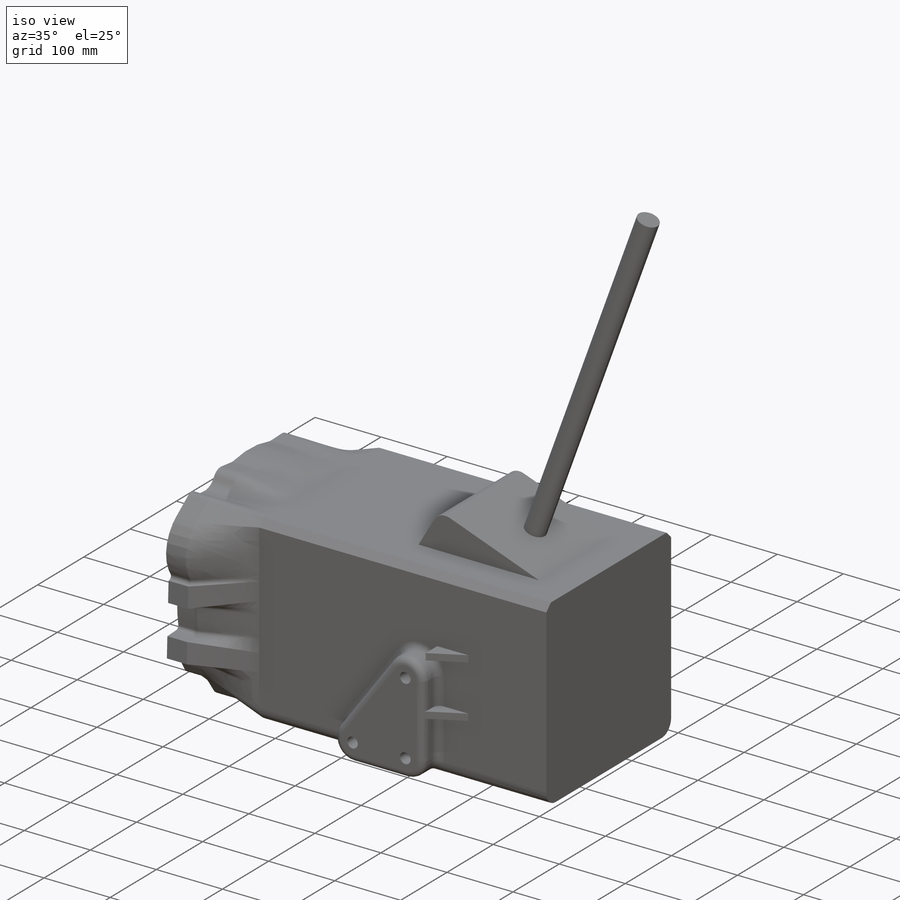
[diagram: iso view]
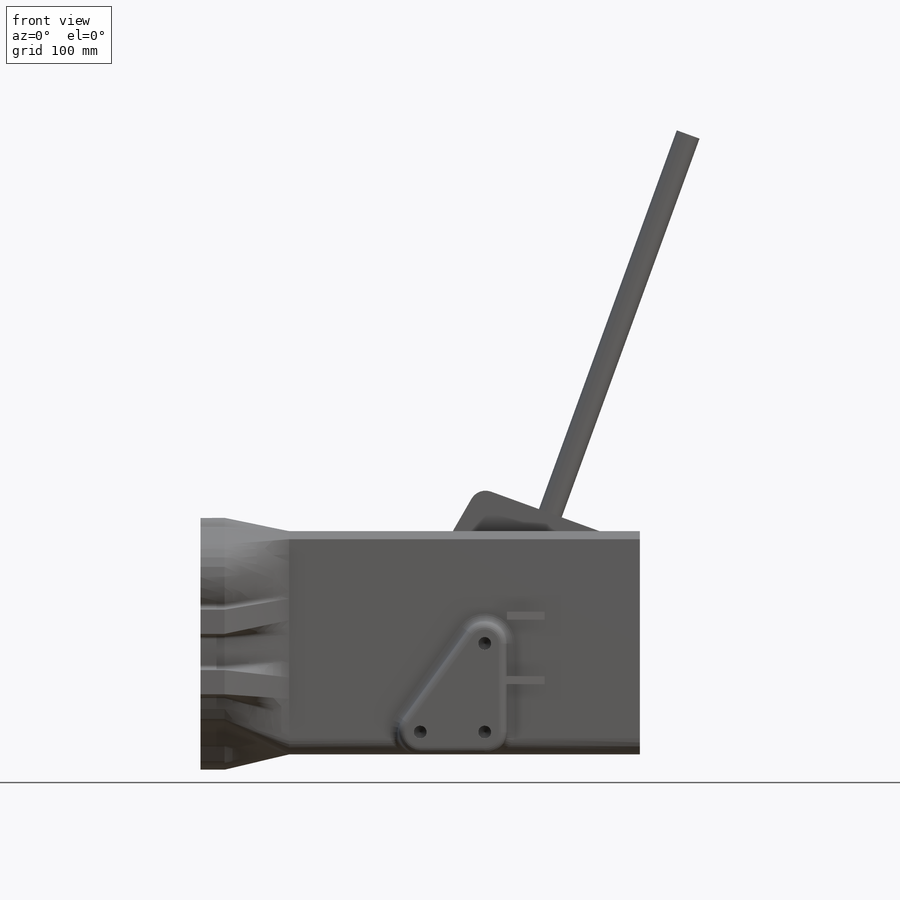
[diagram: front view]
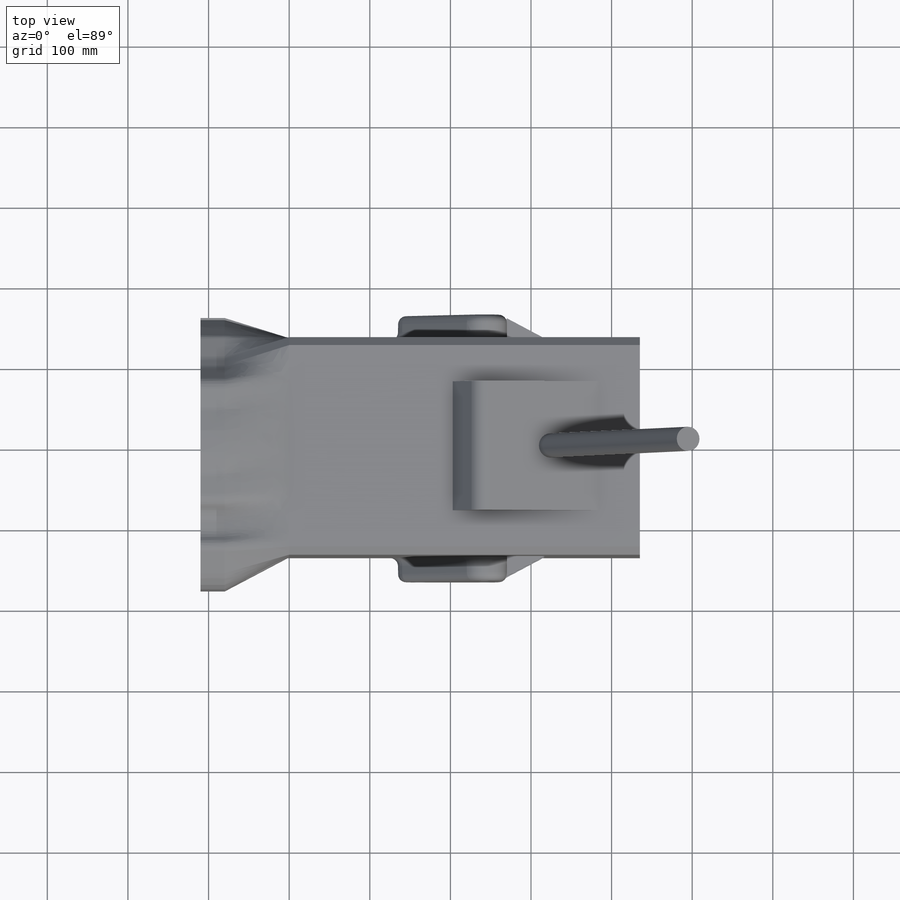
[diagram: top view]
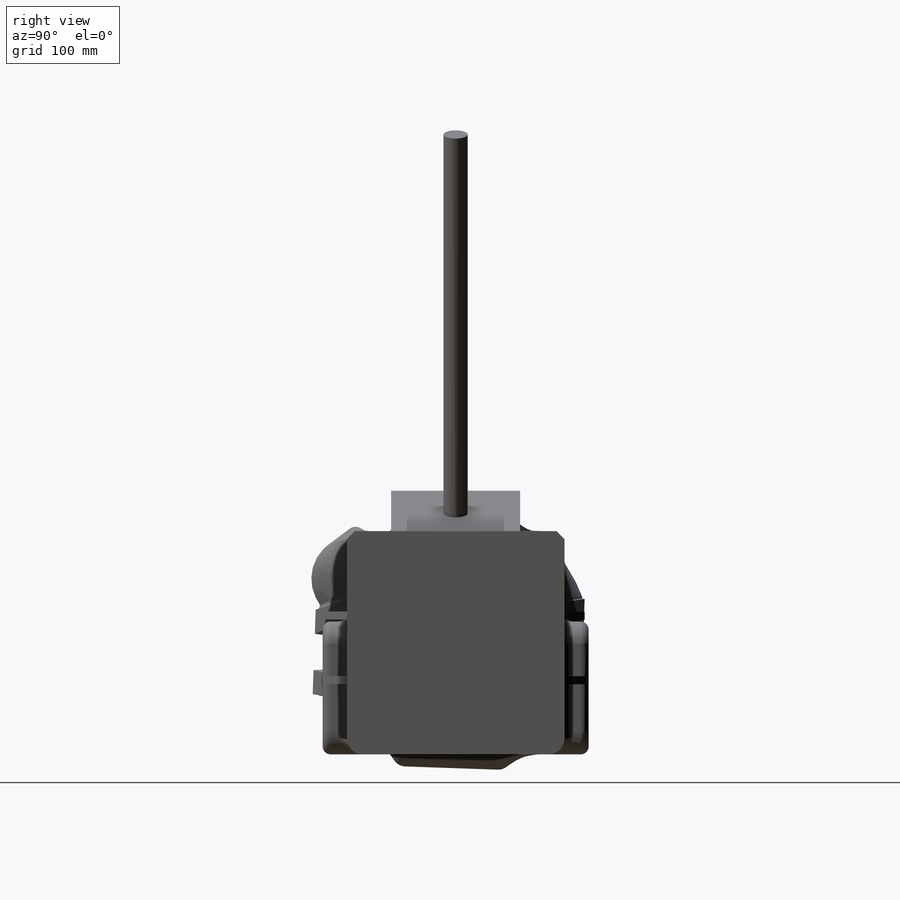
[diagram: right view]
SOLIDWORKS PART (.sldprt)
format: sldprt  version: not decoded by parser v0  size: 779,264 bytes
history: native  units: mm
features: sketch x11, extrude x8, fillet x2, material x1, hole x1, chamfer x1 (+13 scaffold rows collapsed)
feature tree (37):
  scaffold x13  (default folders/planes/origin — collapsed)
  material  "Material <not specified>"
  sketch  "Sketch3"  dims[c1.D3=65.0mm c1.D2=175.0mm c1.D5=~200.065215mm c1.D4=~29.647719mm c1.D1=350.0mm c2.D2=400.0mm c2.D1=400.0mm c3.D2=400.0mm c3.D3=~166.653654mm c3.D5=205.0mm c3.D4=25.0mm c3.D1=400.0mm c4.D5=220.0mm c4.D6=~126.343887mm c5.D6=30.0deg c5.D1=400.0mm c5.D5=229.93mm c6.D6=~96.347649mm c7.D6=28.8deg c7.D1=230.0mm c7.D3=~79.447546mm c8.D3=~57.777739deg c8.D4=149.0mm c8.D1=0.0mm c9.D4=30.0mm]
  sketch  "Sketch1"  dims[c1.D1=550.0mm c1.D2=240.0mm c2.D1=270.0mm c2.D2=277.0mm]
  extrude  "Boss-Extrude1"  Depth=435mm
  fillet  "Fillet1"  Radius=20mm
  sketch  "Sketch2"  dims[c1.D1=~161.503676mm c1.D2=80.0mm c1.D3=110.0mm c1.D4=230.0mm c2.D3=110.0mm c2.D4=165.0mm c2.D1=0.0mm]
  extrude  "Boss-Extrude2"  Depth=30mm
  extrude  "Boss-Extrude9"  [1 undecoded]
  sketch  "Sketch2<2>"  dims[D1=30.0mm]
  sketch  "Sketch7"  dims[D1=47.0mm D2=25.0mm]
  extrude  "Boss-Extrude5"  Depth=10mm
  extrude  "Boss-Extrude11"  [1 undecoded]
  sketch  "Sketch7<2>"  dims[D1=10.0mm D19=190.0mm]
  hole  "Ø16.0 (16) Diameter Hole1"  Diameter=16mm Depth=30mm
  sketch  "3DSketch1"
  sketch  "Sketch9"  dims[hole-wizard template sketch: 46 standard entries collapsed; hole parameters kept: c15.Hole Dia.=16.0mm c15.Hole Depth=30.0mm c15.D3=~14.816244mm c15.Drill Angle=118.0deg]
  sketch  "Sketch10"  dims[c1.D3=20.0mm c1.D1=~181.314929mm c2.D1=20.0deg c2.D2=~181.314929mm c3.D2=60.0deg c3.D4=182.0mm c3.D5=10.0mm c3.D6=35.0mm c4.D5=50.0mm]
  extrude  "Boss-Extrude7"  Depth=160mm
  sketch  "Sketch11"  dims[c1.D1=30.0mm c1.D2=65.0mm c1.D3=25.0mm c1.D4=65.0mm c2.D2=0.0mm]
  extrude  "Boss-Extrude8"  Depth=500mm
  fillet  "Fillet5"  Radius=10mm
  chamfer  "Chamfer3"  Distance=10mm Angle=45deg
  sketch  "Sketch16"  dims[D1=0.0mm]
  extrude  "Boss-Extrude12"  Depth=30mm
decode coverage: 20 of 23 modeling features carry decoded parameters
note: ~ marks probable driven/reference dimensions
note: 2 parameter values undecoded
note: suppression state not decoded; provenance and decode notes live in map.json
